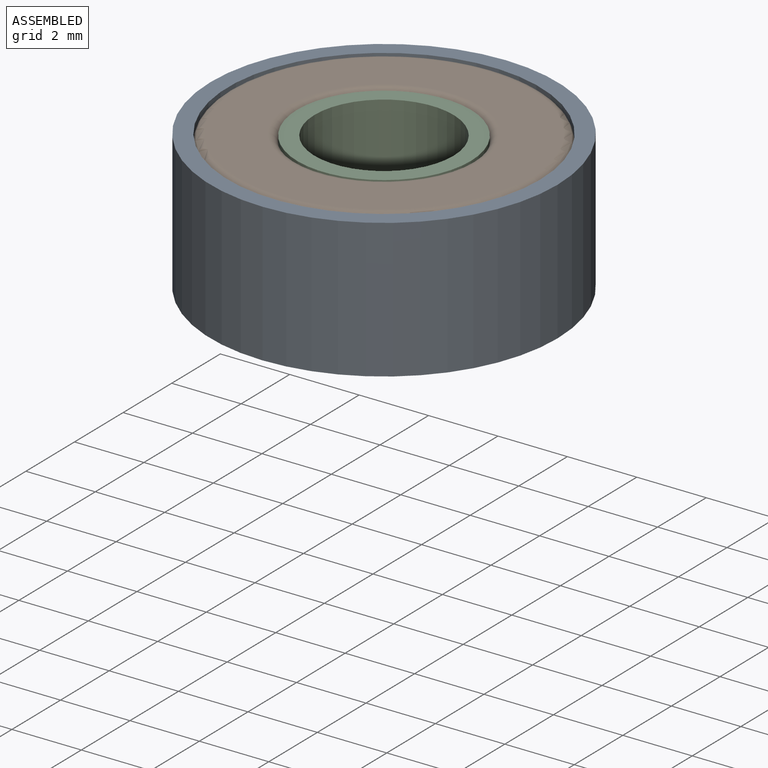
[diagram: assembled view]
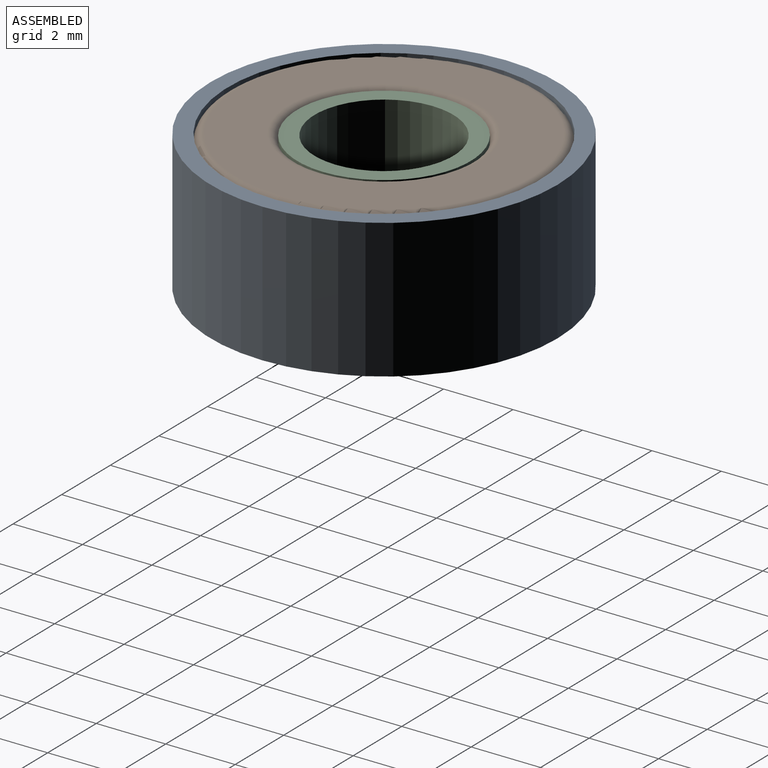
[diagram: assembled view, second angle]
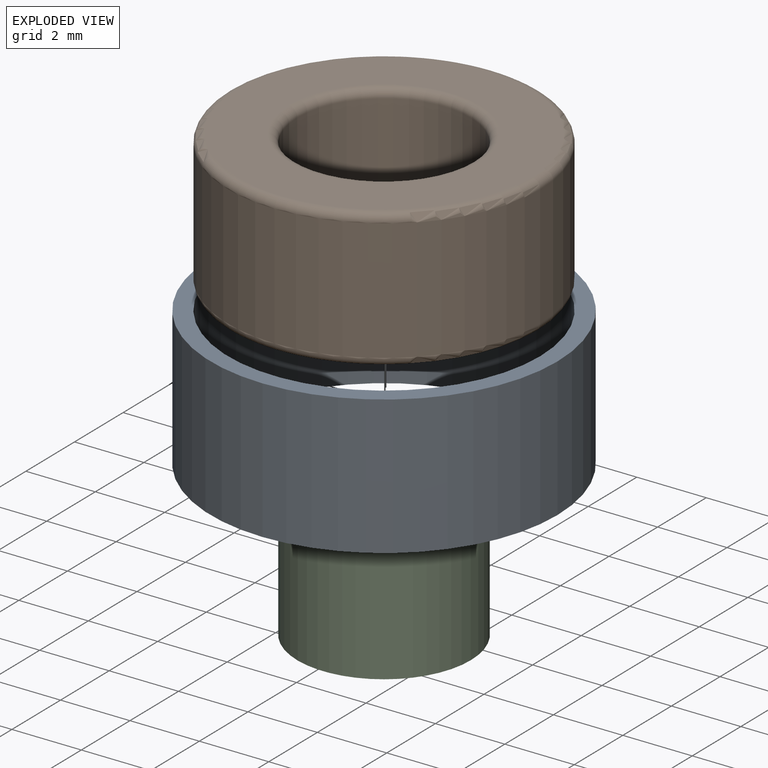
[diagram: exploded view]
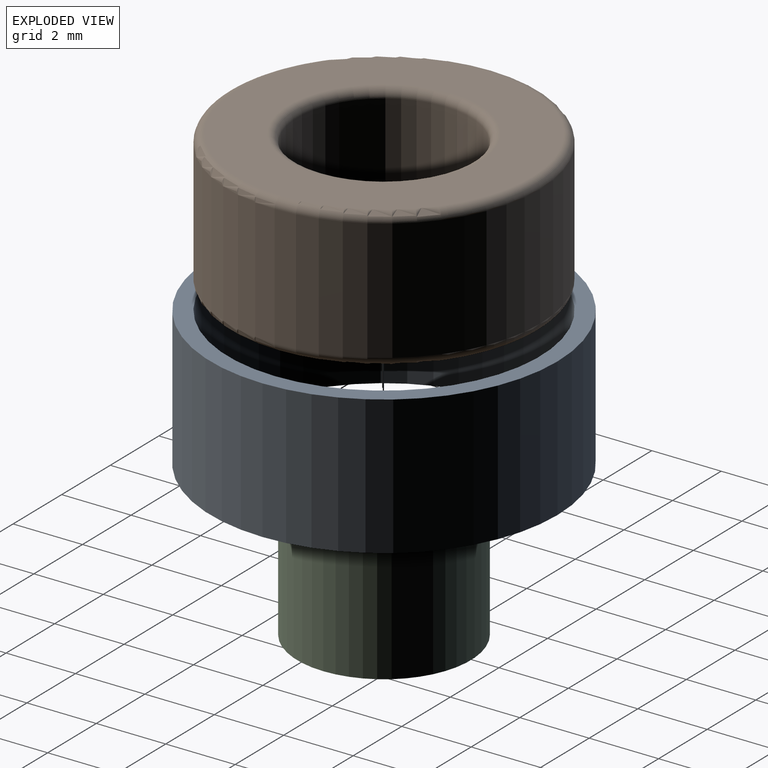
[diagram: exploded view, second angle]
ASSEMBLY  parts=3 mates=2
PART A: 4 faces, bbox 10x10x4 mm
  f0: cylinder r=4.5mm len=9mm, axis (0,0,-1), area 113.1mm2, adj f2,f3
  f1: cylinder r=5mm len=10mm, axis (0,0,-1), area 125.7mm2, adj f2,f3
  f2: plane 10x10mm, normal (0,0,1), area 14.9mm2, adj f0,f1
  f3: plane 10x10mm, normal (0,0,-1), area 14.9mm2, adj f0,f1
PART B: 8 faces, bbox 9.7x9.7x4 mm
  f0: cylinder r=2.5mm len=5mm, axis (0,0,-1), area 55mm2, adj f4,f6
  f1: cylinder r=4.5mm len=9mm, axis (0,0,-1), area 99mm2, adj f5,f7
  f2: plane 8.5x8.5mm, normal (0,0,1), area 33mm2, adj f6,f7
  f3: plane 8.5x8.5mm, normal (0,0,-1), area 33mm2, adj f4,f5
  f4: torus R=2.75mm, axis (0,0,1), area 6.4mm2, adj f0,f3
  f5: torus R=4.25mm, axis (0,0,1), area 10.9mm2, adj f1,f3
  f6: torus R=2.75mm, axis (0,0,1), area 6.4mm2, adj f0,f2
  f7: torus R=4.25mm, axis (0,0,1), area 10.9mm2, adj f1,f2
PART C: 4 faces, bbox 5x5x4 mm
  f0: cylinder r=2mm len=4mm, axis (0,0,-1), area 50.3mm2, adj f2,f3
  f1: cylinder r=2.5mm len=5mm, axis (0,0,-1), area 62.8mm2, adj f2,f3
  f2: plane 5x5mm, normal (0,0,1), area 7.1mm2, adj f0,f1
  f3: plane 5x5mm, normal (0,0,-1), area 7.1mm2, adj f0,f1
PLACE A t=(0.43,-1.01,-3.89)mm
PLACE B t=(0.43,-1.01,-3.89)mm
PLACE C t=(0.43,-1.01,-3.94)mm
MATE revolute B.f0 <-> A.f0  axis (0,0,-1) through (0.43,-1.01,-1.89)mm
MATE revolute C.f0 <-> B.f0  axis (0,0,-1) through (0.43,-1.01,-1.94)mm
